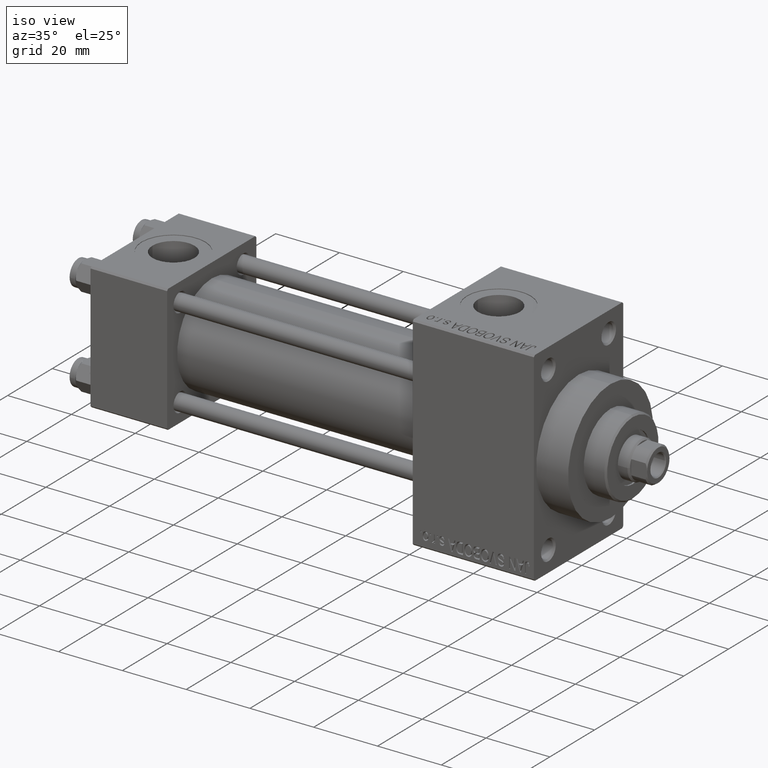
[diagram: clean part render]
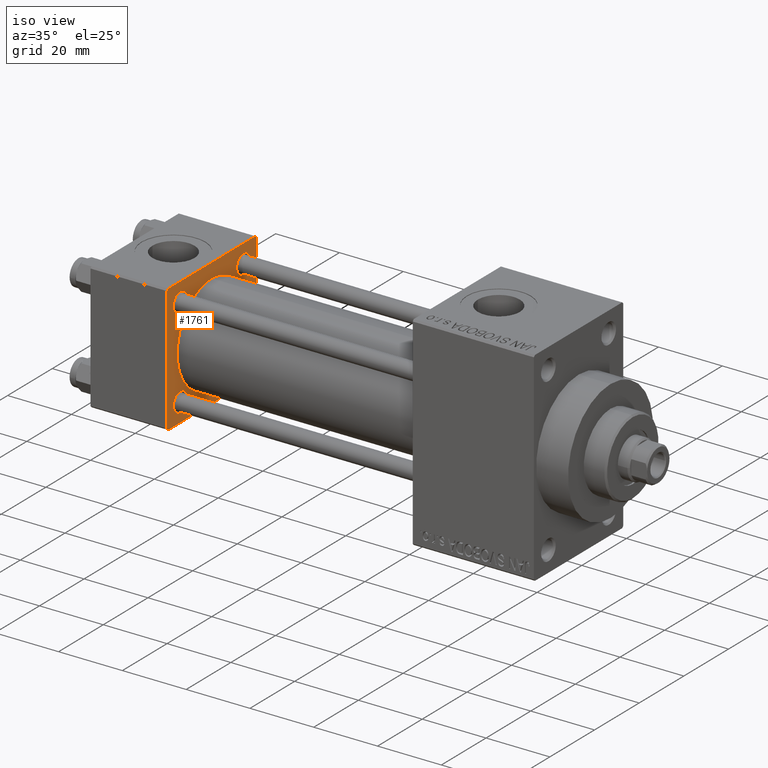
[diagram: same view with one face highlighted and labeled with its STEP entity id]
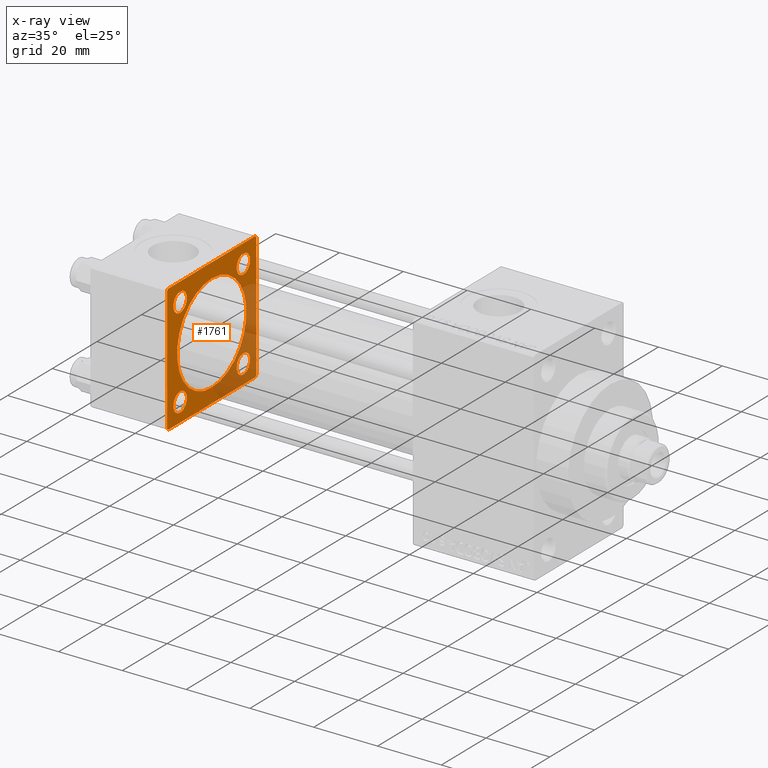
[diagram: x-ray of the same camera — body ghosted, the highlighted face saturated]
A machine part, iso view. The second image highlights one B-rep face of the part: STEP entity #1761.
The next image is the same camera in x-ray: the body ghosted, the highlighted face saturated — about 29% of this face is hidden behind the body in this view.
In plain terms, the highlighted planar face has unit normal (-1, 0, 0).
Its self-contained STEP definition (entity closure, byte-faithful):
#16 = ORIENTED_EDGE ( 'NONE', *, *, #6156, .T. ) ;
#25 = LINE ( 'NONE', #17652, #43781 ) ;
#32 = DIRECTION ( 'NONE',  ( 0.000000000000000000, 0.000000000000000000, 1.000000000000000000 ) ) ;
#134 = ORIENTED_EDGE ( 'NONE', *, *, #20676, .T. ) ;
#148 = EDGE_CURVE ( 'NONE', #39432, #24261, #20726, .T. ) ;
#212 = AXIS2_PLACEMENT_3D ( 'NONE', #1428, #8810, #30484 ) ;
#271 = CARTESIAN_POINT ( 'NONE',  ( 24.00000000000000000, -14.14999999999999503, -17.15000000000002345 ) ) ;
#276 = CARTESIAN_POINT ( 'NONE',  ( 24.00000000000000000, -20.00000000000000355, 19.49999999999998224 ) ) ;
#426 = CARTESIAN_POINT ( 'NONE',  ( 24.00000000000000000, -14.14999999999999503, 11.14999999999998614 ) ) ;
#865 = CARTESIAN_POINT ( 'NONE',  ( 24.00000000000000000, 14.14999999999999858, 14.15000000000000036 ) ) ;
#962 = CIRCLE ( 'NONE', #4787, 2.999999999999990674 ) ;
#974 = DIRECTION ( 'NONE',  ( -1.000000000000000000, 0.000000000000000000, -0.000000000000000000 ) ) ;
#1211 = FACE_BOUND ( 'NONE', #35389, .T. ) ;
#1428 = CARTESIAN_POINT ( 'NONE',  ( 24.00000000000000000, -14.14999999999999503, -14.15000000000000391 ) ) ;
#1453 = FACE_BOUND ( 'NONE', #9592, .T. ) ;
#1622 = DIRECTION ( 'NONE',  ( -1.000000000000000000, -0.000000000000000000, -0.000000000000000000 ) ) ;
#1630 = CARTESIAN_POINT ( 'NONE',  ( 24.00000000000000000, -19.49999999999999289, 19.99999999999998934 ) ) ;
#1761 = ADVANCED_FACE ( 'NONE', ( #37887, #1211, #1453, #23143, #20026, #41463 ), #15763, .F. ) ;
#2150 = CARTESIAN_POINT ( 'NONE',  ( 24.00000000000000000, 19.50000000000000000, 20.00000000000000000 ) ) ;
#2224 = CARTESIAN_POINT ( 'NONE',  ( 24.00000000000000000, 20.00000000000000000, -20.00000000000000711 ) ) ;
#2441 = CARTESIAN_POINT ( 'NONE',  ( 23.99999999999999289, -2.602085213965210642E-15, 15.50000000000000000 ) ) ;
#2474 = AXIS2_PLACEMENT_3D ( 'NONE', #41903, #41436, #8809 ) ;
#3200 = CARTESIAN_POINT ( 'NONE',  ( 24.00000000000000000, 20.00000000000000000, -19.50000000000002132 ) ) ;
#3515 = CARTESIAN_POINT ( 'NONE',  ( 24.00000000000000000, 19.50000000000000000, 20.00000000000000000 ) ) ;
#4671 = EDGE_CURVE ( 'NONE', #16491, #22326, #962, .T. ) ;
#4787 = AXIS2_PLACEMENT_3D ( 'NONE', #15709, #16649, #31155 ) ;
#4985 = VECTOR ( 'NONE', #31609, 1000.000000000000000 ) ;
#5084 = DIRECTION ( 'NONE',  ( -1.000000000000000000, -0.000000000000000000, -0.000000000000000000 ) ) ;
#5238 = ORIENTED_EDGE ( 'NONE', *, *, #46869, .F. ) ;
#5786 = ORIENTED_EDGE ( 'NONE', *, *, #45894, .T. ) ;
#6156 = EDGE_CURVE ( 'NONE', #31413, #28469, #43601, .T. ) ;
#6564 = VERTEX_POINT ( 'NONE', #10402 ) ;
#6673 = CIRCLE ( 'NONE', #13510, 15.50000000000000000 ) ;
#7156 = VERTEX_POINT ( 'NONE', #40825 ) ;
#7655 = LINE ( 'NONE', #276, #44515 ) ;
#8048 = EDGE_CURVE ( 'NONE', #19683, #35666, #35323, .T. ) ;
#8127 = CARTESIAN_POINT ( 'NONE',  ( 24.00000000000000000, 14.14999999999999858, -14.15000000000000036 ) ) ;
#8695 = EDGE_CURVE ( 'NONE', #32694, #15139, #32522, .T. ) ;
#8706 = VECTOR ( 'NONE', #25468, 999.9999999999998863 ) ;
#8809 = DIRECTION ( 'NONE',  ( 0.000000000000000000, 0.000000000000000000, 1.000000000000000000 ) ) ;
#8810 = DIRECTION ( 'NONE',  ( -1.000000000000000000, -0.000000000000000000, -0.000000000000000000 ) ) ;
#8818 = DIRECTION ( 'NONE',  ( 1.000000000000000000, 0.000000000000000000, 0.000000000000000000 ) ) ;
#9429 = VECTOR ( 'NONE', #35611, 1000.000000000000000 ) ;
#9592 = EDGE_LOOP ( 'NONE', ( #16, #36909 ) ) ;
#10216 = LINE ( 'NONE', #32840, #29352 ) ;
#10402 = CARTESIAN_POINT ( 'NONE',  ( 24.00000000000000000, 20.00000000000000000, 19.49999999999999289 ) ) ;
#10511 = CARTESIAN_POINT ( 'NONE',  ( 23.99999999999999289, -2.602085213965210642E-15, 0.000000000000000000 ) ) ;
#11076 = EDGE_CURVE ( 'NONE', #22761, #32694, #7655, .T. ) ;
#11228 = DIRECTION ( 'NONE',  ( 0.000000000000000000, 0.000000000000000000, 1.000000000000000000 ) ) ;
#11545 = EDGE_CURVE ( 'NONE', #22844, #22761, #30674, .T. ) ;
#11898 = ORIENTED_EDGE ( 'NONE', *, *, #11545, .T. ) ;
#12406 = ORIENTED_EDGE ( 'NONE', *, *, #11076, .T. ) ;
#12540 = ORIENTED_EDGE ( 'NONE', *, *, #4671, .T. ) ;
#13275 = EDGE_CURVE ( 'NONE', #21399, #14478, #23322, .T. ) ;
#13510 = AXIS2_PLACEMENT_3D ( 'NONE', #10511, #32666, #32 ) ;
#14238 = LINE ( 'NONE', #25183, #43075 ) ;
#14274 = DIRECTION ( 'NONE',  ( -0.000000000000000000, 0.7071067811865524577, 0.7071067811865426878 ) ) ;
#14478 = VERTEX_POINT ( 'NONE', #2441 ) ;
#14675 = CIRCLE ( 'NONE', #212, 3.000000000000018208 ) ;
#15139 = VERTEX_POINT ( 'NONE', #24522 ) ;
#15709 = CARTESIAN_POINT ( 'NONE',  ( 24.00000000000000000, 14.14999999999999858, 14.15000000000000036 ) ) ;
#15763 = PLANE ( 'NONE',  #22300 ) ;
#16491 = VERTEX_POINT ( 'NONE', #39693 ) ;
#16649 = DIRECTION ( 'NONE',  ( -1.000000000000000000, -0.000000000000000000, -0.000000000000000000 ) ) ;
#17359 = EDGE_CURVE ( 'NONE', #15139, #35666, #14238, .T. ) ;
#17505 = EDGE_CURVE ( 'NONE', #22326, #16491, #45375, .T. ) ;
#17652 = CARTESIAN_POINT ( 'NONE',  ( 24.00000000000000000, 20.00000000000000000, 20.00000000000000000 ) ) ;
#17859 = ORIENTED_EDGE ( 'NONE', *, *, #40157, .T. ) ;
#18187 = EDGE_LOOP ( 'NONE', ( #12540, #18922 ) ) ;
#18775 = CARTESIAN_POINT ( 'NONE',  ( 24.00000000000000000, -14.14999999999999503, 17.15000000000002345 ) ) ;
#18922 = ORIENTED_EDGE ( 'NONE', *, *, #17505, .T. ) ;
#19327 = VECTOR ( 'NONE', #28171, 1000.000000000000000 ) ;
#19559 = DIRECTION ( 'NONE',  ( -0.000000000000000000, 0.000000000000000000, 1.000000000000000000 ) ) ;
#19683 = VERTEX_POINT ( 'NONE', #35209 ) ;
#19695 = VERTEX_POINT ( 'NONE', #35668 ) ;
#19728 = CARTESIAN_POINT ( 'NONE',  ( 24.00000000000000000, -14.14999999999999503, 14.15000000000000391 ) ) ;
#19927 = ORIENTED_EDGE ( 'NONE', *, *, #20569, .F. ) ;
#20026 = FACE_BOUND ( 'NONE', #43880, .T. ) ;
#20251 = CARTESIAN_POINT ( 'NONE',  ( 24.00000000000000000, -14.14999999999999503, 14.15000000000000391 ) ) ;
#20569 = EDGE_CURVE ( 'NONE', #14478, #21399, #6673, .T. ) ;
#20676 = EDGE_CURVE ( 'NONE', #7156, #19695, #45178, .T. ) ;
#20726 = CIRCLE ( 'NONE', #2474, 3.000000000000018208 ) ;
#21090 = CARTESIAN_POINT ( 'NONE',  ( 24.00000000000000000, -20.00000000000000355, 19.99999999999998934 ) ) ;
#21399 = VERTEX_POINT ( 'NONE', #21963 ) ;
#21775 = ORIENTED_EDGE ( 'NONE', *, *, #8695, .T. ) ;
#21831 = EDGE_CURVE ( 'NONE', #28469, #31413, #23465, .T. ) ;
#21963 = CARTESIAN_POINT ( 'NONE',  ( 23.99999999999999289, -7.038826752868131828E-16, -15.50000000000000000 ) ) ;
#22300 = AXIS2_PLACEMENT_3D ( 'NONE', #37650, #974, #19559 ) ;
#22326 = VERTEX_POINT ( 'NONE', #44566 ) ;
#22508 = ORIENTED_EDGE ( 'NONE', *, *, #17359, .T. ) ;
#22659 = DIRECTION ( 'NONE',  ( -1.000000000000000000, -0.000000000000000000, -0.000000000000000000 ) ) ;
#22761 = VERTEX_POINT ( 'NONE', #1630 ) ;
#22844 = VERTEX_POINT ( 'NONE', #3515 ) ;
#22934 = ORIENTED_EDGE ( 'NONE', *, *, #8048, .F. ) ;
#23143 = FACE_BOUND ( 'NONE', #18187, .T. ) ;
#23322 = CIRCLE ( 'NONE', #35474, 15.50000000000000000 ) ;
#23371 = DIRECTION ( 'NONE',  ( 0.000000000000000000, 0.000000000000000000, 1.000000000000000000 ) ) ;
#23465 = CIRCLE ( 'NONE', #44719, 3.000000000000018208 ) ;
#24261 = VERTEX_POINT ( 'NONE', #43486 ) ;
#24522 = CARTESIAN_POINT ( 'NONE',  ( 24.00000000000000000, -20.00000000000000000, -19.49999999999999645 ) ) ;
#25183 = CARTESIAN_POINT ( 'NONE',  ( 24.00000000000000000, -19.50000000000000711, -20.00000000000000000 ) ) ;
#25468 = DIRECTION ( 'NONE',  ( 0.000000000000000000, -0.7071067811865425767, 0.7071067811865525687 ) ) ;
#25621 = EDGE_LOOP ( 'NONE', ( #26888, #44937 ) ) ;
#26740 = CARTESIAN_POINT ( 'NONE',  ( 24.00000000000000000, 14.14999999999999858, -14.15000000000000036 ) ) ;
#26888 = ORIENTED_EDGE ( 'NONE', *, *, #148, .T. ) ;
#28171 = DIRECTION ( 'NONE',  ( 0.000000000000000000, -1.000000000000000000, 1.734723475976807094E-16 ) ) ;
#28469 = VERTEX_POINT ( 'NONE', #18775 ) ;
#29352 = VECTOR ( 'NONE', #14274, 1000.000000000000000 ) ;
#30484 = DIRECTION ( 'NONE',  ( 0.000000000000000000, 0.000000000000000000, 1.000000000000000000 ) ) ;
#30674 = LINE ( 'NONE', #45204, #4985 ) ;
#30679 = DIRECTION ( 'NONE',  ( 0.000000000000000000, 0.000000000000000000, 1.000000000000000000 ) ) ;
#31155 = DIRECTION ( 'NONE',  ( 0.000000000000000000, 0.000000000000000000, 1.000000000000000000 ) ) ;
#31413 = VERTEX_POINT ( 'NONE', #426 ) ;
#31609 = DIRECTION ( 'NONE',  ( 0.000000000000000000, -1.000000000000000000, -2.602085213965210149E-16 ) ) ;
#32522 = LINE ( 'NONE', #21090, #9429 ) ;
#32666 = DIRECTION ( 'NONE',  ( 1.000000000000000000, 0.000000000000000000, 0.000000000000000000 ) ) ;
#32687 = EDGE_CURVE ( 'NONE', #24261, #39432, #14675, .T. ) ;
#32694 = VERTEX_POINT ( 'NONE', #37628 ) ;
#32840 = CARTESIAN_POINT ( 'NONE',  ( 24.00000000000000000, 20.00000000000000000, -19.50000000000002132 ) ) ;
#34208 = DIRECTION ( 'NONE',  ( -1.000000000000000000, -0.000000000000000000, -0.000000000000000000 ) ) ;
#34553 = AXIS2_PLACEMENT_3D ( 'NONE', #26740, #5084, #34839 ) ;
#34726 = AXIS2_PLACEMENT_3D ( 'NONE', #865, #34208, #37781 ) ;
#34839 = DIRECTION ( 'NONE',  ( 0.000000000000000000, 0.000000000000000000, 1.000000000000000000 ) ) ;
#35209 = CARTESIAN_POINT ( 'NONE',  ( 24.00000000000000000, 19.50000000000000711, -20.00000000000000711 ) ) ;
#35275 = ORIENTED_EDGE ( 'NONE', *, *, #40600, .T. ) ;
#35323 = LINE ( 'NONE', #2224, #19327 ) ;
#35389 = EDGE_LOOP ( 'NONE', ( #17859, #134 ) ) ;
#35474 = AXIS2_PLACEMENT_3D ( 'NONE', #45018, #8818, #23371 ) ;
#35611 = DIRECTION ( 'NONE',  ( 0.000000000000000000, 8.673617379884036705E-17, -1.000000000000000000 ) ) ;
#35666 = VERTEX_POINT ( 'NONE', #43814 ) ;
#35668 = CARTESIAN_POINT ( 'NONE',  ( 24.00000000000000000, 14.14999999999999858, -17.14999999999999147 ) ) ;
#36140 = DIRECTION ( 'NONE',  ( 0.000000000000000000, 0.7071067811865401342, -0.7071067811865549002 ) ) ;
#36432 = VERTEX_POINT ( 'NONE', #3200 ) ;
#36711 = DIRECTION ( 'NONE',  ( -0.000000000000000000, -0.7071067811865500152, -0.7071067811865451302 ) ) ;
#36809 = AXIS2_PLACEMENT_3D ( 'NONE', #8127, #22659, #11228 ) ;
#36909 = ORIENTED_EDGE ( 'NONE', *, *, #21831, .T. ) ;
#37628 = CARTESIAN_POINT ( 'NONE',  ( 24.00000000000000000, -20.00000000000000355, 19.49999999999998224 ) ) ;
#37650 = CARTESIAN_POINT ( 'NONE',  ( 24.00000000000000000, 0.000000000000000000, 0.000000000000000000 ) ) ;
#37781 = DIRECTION ( 'NONE',  ( 0.000000000000000000, 0.000000000000000000, 1.000000000000000000 ) ) ;
#37887 = FACE_BOUND ( 'NONE', #25621, .T. ) ;
#38258 = AXIS2_PLACEMENT_3D ( 'NONE', #20251, #42165, #38343 ) ;
#38341 = LINE ( 'NONE', #2150, #8706 ) ;
#38343 = DIRECTION ( 'NONE',  ( 0.000000000000000000, 0.000000000000000000, 1.000000000000000000 ) ) ;
#39432 = VERTEX_POINT ( 'NONE', #271 ) ;
#39693 = CARTESIAN_POINT ( 'NONE',  ( 24.00000000000000000, 14.14999999999999858, 11.15000000000001279 ) ) ;
#40157 = EDGE_CURVE ( 'NONE', #19695, #7156, #45224, .T. ) ;
#40600 = EDGE_CURVE ( 'NONE', #6564, #22844, #38341, .T. ) ;
#40825 = CARTESIAN_POINT ( 'NONE',  ( 24.00000000000000000, 14.14999999999999858, -11.15000000000001279 ) ) ;
#41436 = DIRECTION ( 'NONE',  ( -1.000000000000000000, -0.000000000000000000, -0.000000000000000000 ) ) ;
#41463 = FACE_OUTER_BOUND ( 'NONE', #45704, .T. ) ;
#41903 = CARTESIAN_POINT ( 'NONE',  ( 24.00000000000000000, -14.14999999999999503, -14.15000000000000391 ) ) ;
#42165 = DIRECTION ( 'NONE',  ( -1.000000000000000000, -0.000000000000000000, -0.000000000000000000 ) ) ;
#43075 = VECTOR ( 'NONE', #36140, 1000.000000000000000 ) ;
#43132 = DIRECTION ( 'NONE',  ( 0.000000000000000000, 0.000000000000000000, -1.000000000000000000 ) ) ;
#43486 = CARTESIAN_POINT ( 'NONE',  ( 24.00000000000000000, -14.14999999999999503, -11.14999999999998614 ) ) ;
#43601 = CIRCLE ( 'NONE', #38258, 3.000000000000018208 ) ;
#43781 = VECTOR ( 'NONE', #43132, 1000.000000000000000 ) ;
#43814 = CARTESIAN_POINT ( 'NONE',  ( 24.00000000000000000, -19.50000000000000711, -20.00000000000000000 ) ) ;
#43880 = EDGE_LOOP ( 'NONE', ( #19927, #46215 ) ) ;
#44515 = VECTOR ( 'NONE', #36711, 1000.000000000000114 ) ;
#44566 = CARTESIAN_POINT ( 'NONE',  ( 24.00000000000000000, 14.14999999999999858, 17.14999999999999147 ) ) ;
#44719 = AXIS2_PLACEMENT_3D ( 'NONE', #19728, #1622, #30679 ) ;
#44937 = ORIENTED_EDGE ( 'NONE', *, *, #32687, .T. ) ;
#45018 = CARTESIAN_POINT ( 'NONE',  ( 23.99999999999999289, -2.602085213965210642E-15, 0.000000000000000000 ) ) ;
#45178 = CIRCLE ( 'NONE', #36809, 2.999999999999990674 ) ;
#45204 = CARTESIAN_POINT ( 'NONE',  ( 24.00000000000000000, 20.00000000000000000, 20.00000000000000000 ) ) ;
#45224 = CIRCLE ( 'NONE', #34553, 2.999999999999990674 ) ;
#45375 = CIRCLE ( 'NONE', #34726, 2.999999999999990674 ) ;
#45704 = EDGE_LOOP ( 'NONE', ( #22934, #5786, #5238, #35275, #11898, #12406, #21775, #22508 ) ) ;
#45894 = EDGE_CURVE ( 'NONE', #19683, #36432, #10216, .T. ) ;
#46215 = ORIENTED_EDGE ( 'NONE', *, *, #13275, .F. ) ;
#46869 = EDGE_CURVE ( 'NONE', #6564, #36432, #25, .T. ) ;